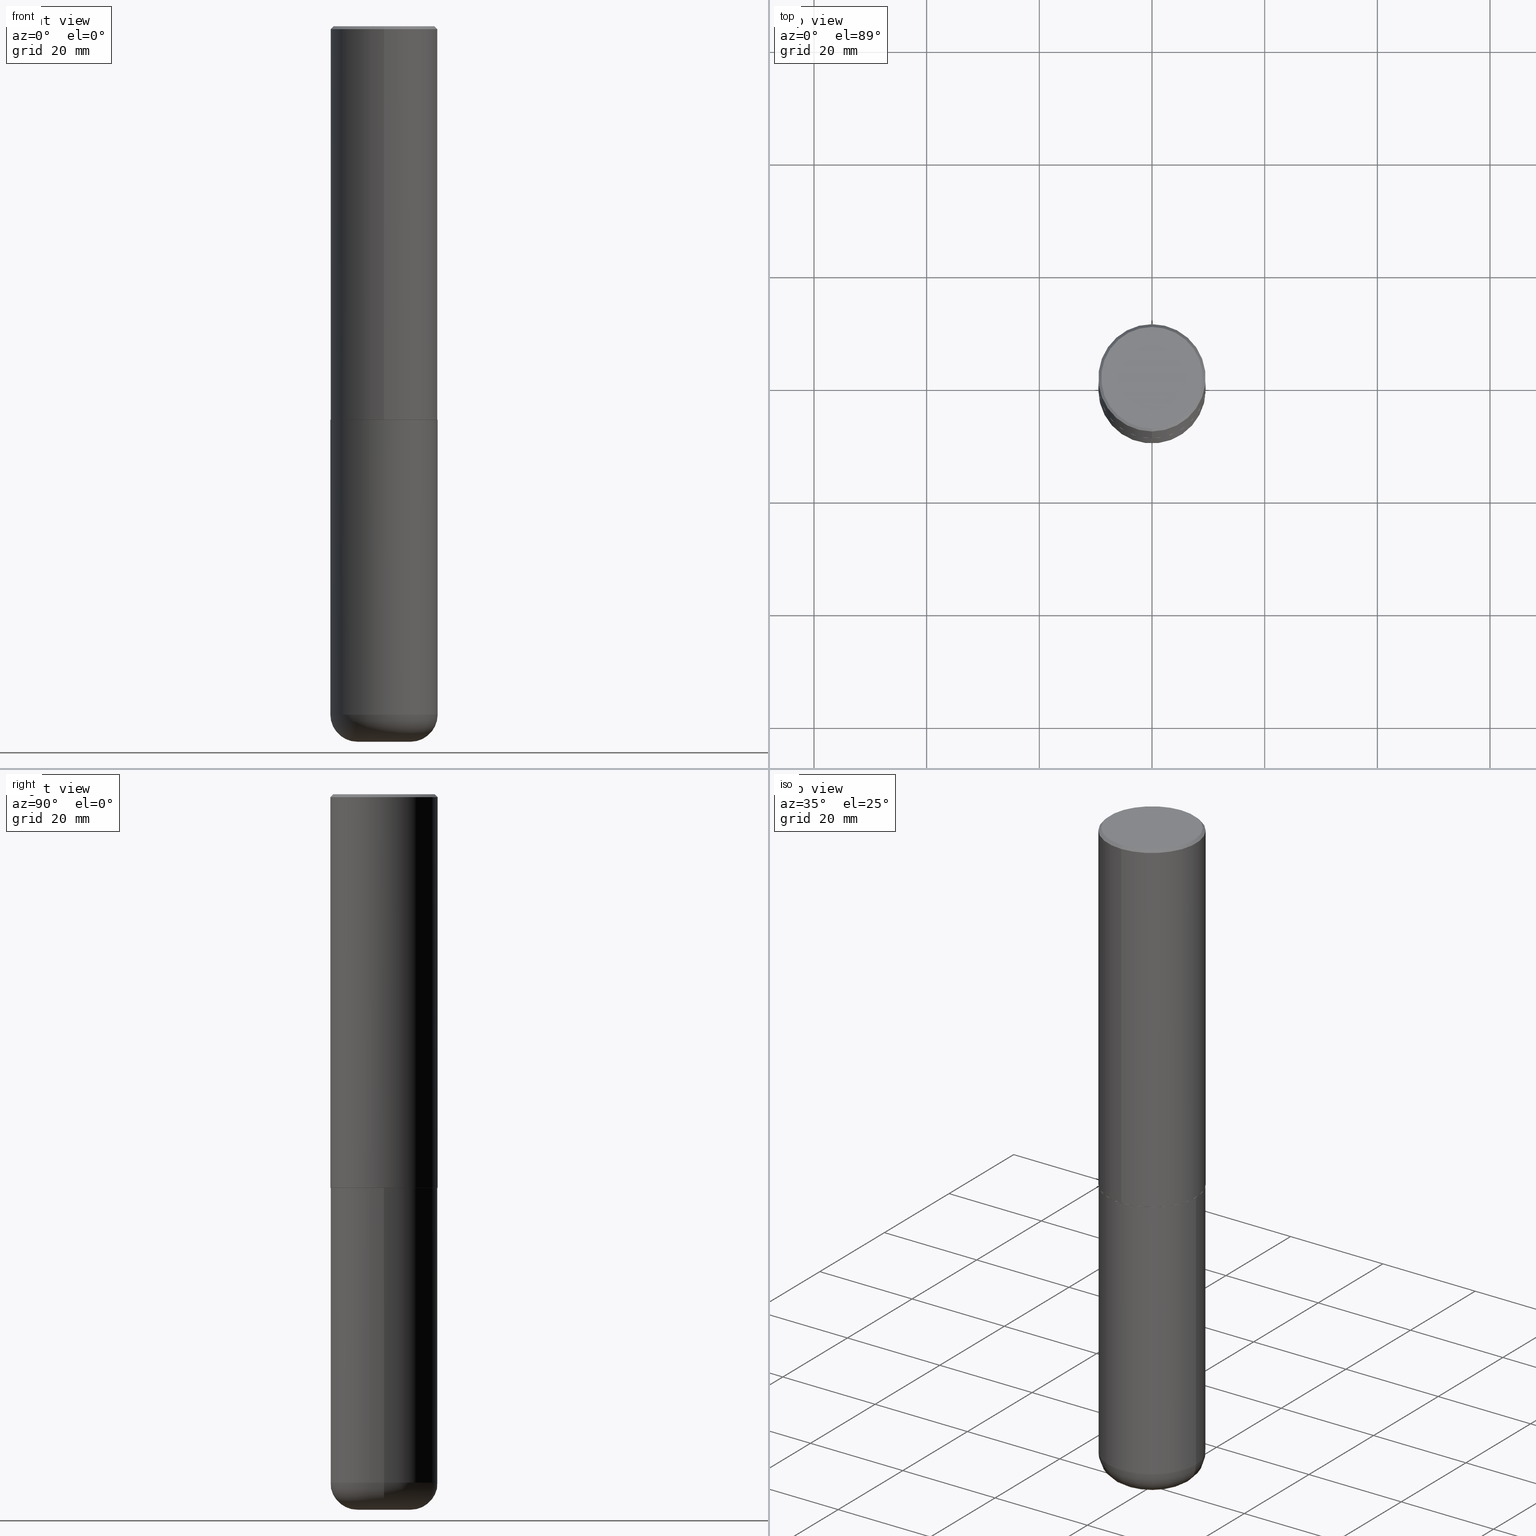
[diagram: canonical four-view strip — front | top / right | iso, engineering-drawing reading convention]
A machine part, canonical four-view strip (front | top / right | iso — engineering-drawing reading convention). The complete STEP part file that produces these views, byte-faithful:
ISO-10303-21;
HEADER;
FILE_DESCRIPTION (( 'STEP AP203' ),
    '1' );
FILE_NAME ('37680.STEP',
    '2024-03-02T08:03:44',
    ( '' ),
    ( '' ),
    'SwSTEP 2.0',
    'SolidWorks 2023',
    '' );
FILE_SCHEMA (( 'CONFIG_CONTROL_DESIGN' ));
ENDSEC;

DATA;
#1 = DIRECTION ( 'NONE',  ( 1.000000000000000000, -6.982962677686266711E-15, 0.000000000000000000 ) ) ;
#2 = COORDINATED_UNIVERSAL_TIME_OFFSET ( 5, 0, .BEHIND. ) ;
#3 = ORIENTED_EDGE ( 'NONE', *, *, #362, .T. ) ;
#4 = ORIENTED_EDGE ( 'NONE', *, *, #368, .T. ) ;
#5 = CIRCLE ( 'NONE', #166, 0.1899999999999999190 ) ;
#6 = CIRCLE ( 'NONE', #240, 0.1850000000000000810 ) ;
#7 = ORIENTED_EDGE ( 'NONE', *, *, #187, .T. ) ;
#8 = ADVANCED_BREP_SHAPE_REPRESENTATION ( '37680', ( #154, #290, #365 ), #36 ) ;
#9 = ADVANCED_FACE ( 'NONE', ( #194 ), #100, .T. ) ;
#10 = VERTEX_POINT ( 'NONE', #196 ) ;
#11 = DATE_AND_TIME ( #45, #392 ) ;
#12 = DIRECTION ( 'NONE',  ( -6.982962677686266711E-15, -1.000000000000000000, 3.491481338843145583E-15 ) ) ;
#13 = CARTESIAN_POINT ( 'NONE',  ( 1.176270495775050811E-28, -1.679402523983553013E-14, -4.810000000000000497 ) ) ;
#14 = ORIENTED_EDGE ( 'NONE', *, *, #227, .F. ) ;
#15 = AXIS2_PLACEMENT_3D ( 'NONE', #13, #232, #44 ) ;
#16 = DIRECTION ( 'NONE',  ( -2.446040391741596606E-29, 3.490662795793665557E-15, 1.000000000000000000 ) ) ;
#17 = SECURITY_CLASSIFICATION ( '', '', #28 ) ;
#18 = EDGE_CURVE ( 'NONE', #40, #276, #51, .T. ) ;
#19 = CARTESIAN_POINT ( 'NONE',  ( -0.3750000000000001110, 2.664535259100376486E-15, -1.844600658845590159E-29 ) ) ;
#20 = DIRECTION ( 'NONE',  ( 6.982962677686265922E-15, 1.000000000000000000, -3.490662795793665557E-15 ) ) ;
#21 = CARTESIAN_POINT ( 'NONE',  ( 2.618611004132350411E-15, 0.3749999999999999445, -0.02000000000000139513 ) ) ;
#22 = DIRECTION ( 'NONE',  ( -6.982962677686265922E-15, -1.000000000000000000, 3.490662795793665557E-15 ) ) ;
#23 = PRODUCT_DEFINITION ( 'UNKNOWN', '', #323, #313 ) ;
#24 = DIRECTION ( 'NONE',  ( -2.446040391741596606E-29, 3.490662795793665557E-15, 1.000000000000000000 ) ) ;
#25 = AXIS2_PLACEMENT_3D ( 'NONE', #210, #261, #216 ) ;
#26 =( NAMED_UNIT ( * ) SI_UNIT ( $, .STERADIAN. ) SOLID_ANGLE_UNIT ( ) );
#27 = DIRECTION ( 'NONE',  ( -2.446040391741596606E-29, 3.490662795793665557E-15, 1.000000000000000000 ) ) ;
#28 = SECURITY_CLASSIFICATION_LEVEL ( 'unclassified' ) ;
#29 = APPROVAL_ROLE ( '' ) ;
#30 = ADVANCED_FACE ( 'NONE', ( #56 ), #172, .F. ) ;
#31 = CIRCLE ( 'NONE', #81, 0.1850000000000000810 ) ;
#32 = ADVANCED_FACE ( 'NONE', ( #404 ), #199, .T. ) ;
#33 = AXIS2_PLACEMENT_3D ( 'NONE', #321, #121, #250 ) ;
#34 = CIRCLE ( 'NONE', #291, 0.3750000000000003886 ) ;
#35 = ORIENTED_EDGE ( 'NONE', *, *, #177, .T. ) ;
#36 =( GEOMETRIC_REPRESENTATION_CONTEXT ( 3 ) GLOBAL_UNCERTAINTY_ASSIGNED_CONTEXT ( ( #55 ) ) GLOBAL_UNIT_ASSIGNED_CONTEXT ( ( #102, #94, #26 ) ) REPRESENTATION_CONTEXT ( 'NONE', 'WORKASPACE' ) );
#37 = DATE_AND_TIME ( #349, #334 ) ;
#38 = ORIENTED_EDGE ( 'NONE', *, *, #41, .T. ) ;
#39 = VERTEX_POINT ( 'NONE', #263 ) ;
#40 = VERTEX_POINT ( 'NONE', #231 ) ;
#41 = EDGE_CURVE ( 'NONE', #195, #276, #267, .T. ) ;
#42 = AXIS2_PLACEMENT_3D ( 'NONE', #283, #119, #358 ) ;
#43 = DIRECTION ( 'NONE',  ( -2.445468806185136597E-29, 3.491481338843145583E-15, 1.000000000000000000 ) ) ;
#44 = DIRECTION ( 'NONE',  ( 1.000000000000000000, -6.982962677686269077E-15, 4.883557194083113462E-29 ) ) ;
#45 = CALENDAR_DATE ( 2024, 2, 3 ) ;
#46 = PERSON ( 'UNSPECIFIED', 'UNSPECIFIED', 'UNSPECIFIED', ('UNSPECIFIED'), ('UNSPECIFIED'), ('UNSPECIFIED') ) ;
#47 = CARTESIAN_POINT ( 'NONE',  ( 0.3750000000000000555, -1.941263624396788015E-14, -4.810000000000000497 ) ) ;
#48 = DIRECTION ( 'NONE',  ( -2.446040391741596606E-29, 3.490662795793665557E-15, 1.000000000000000000 ) ) ;
#49 = DIRECTION ( 'NONE',  ( 1.000000000000000000, -6.982962677686272233E-15, 0.000000000000000000 ) ) ;
#50 = CARTESIAN_POINT ( 'NONE',  ( 1.222734403092568523E-28, -1.745740669421572989E-14, -5.000000000000000000 ) ) ;
#51 = CIRCLE ( 'NONE', #96, 0.3750000000000000555 ) ;
#52 = VECTOR ( 'NONE', #273, 39.37007874015748143 ) ;
#53 = CARTESIAN_POINT ( 'NONE',  ( 4.892080783483214581E-31, -6.981325591587361238E-17, -0.02000000000000008715 ) ) ;
#54 = LOCAL_TIME ( 3, 3, 44.00000000000000000, #326 ) ;
#55 = UNCERTAINTY_MEASURE_WITH_UNIT (LENGTH_MEASURE( 1.000000000000000082E-05 ), #102, 'distance_accuracy_value', 'NONE');
#56 = FACE_OUTER_BOUND ( 'NONE', #260, .T. ) ;
#57 = EDGE_LOOP ( 'NONE', ( #3, #7, #228, #180 ) ) ;
#58 = LINE ( 'NONE', #179, #356 ) ;
#59 = PERSON_AND_ORGANIZATION ( #46, #278 ) ;
#60 = LINE ( 'NONE', #418, #391 ) ;
#61 = AXIS2_PLACEMENT_3D ( 'NONE', #374, #16, #236 ) ;
#62 = CALENDAR_DATE ( 2024, 2, 3 ) ;
#63 = CARTESIAN_POINT ( 'NONE',  ( -2.572686749164323547E-15, -0.3750000000000001110, -0.01999999999999877570 ) ) ;
#64 = EDGE_CURVE ( 'NONE', #378, #393, #31, .T. ) ;
#65 = CARTESIAN_POINT ( 'NONE',  ( 2.664535259100411196E-15, 0.3749999999999907296, -2.749000000000000998 ) ) ;
#66 = CC_DESIGN_PERSON_AND_ORGANIZATION_ASSIGNMENT ( #248, #413, ( #104 ) ) ;
#67 = DIRECTION ( 'NONE',  ( -6.982962677686265922E-15, -1.000000000000000000, 2.913971193241877611E-15 ) ) ;
#68 = PERSON_AND_ORGANIZATION ( #46, #278 ) ;
#69 = CARTESIAN_POINT ( 'NONE',  ( 6.725039217009124520E-29, -9.601573681818649859E-15, -2.750000000000000000 ) ) ;
#70 = AXIS2_PLACEMENT_3D ( 'NONE', #155, #253, #357 ) ;
#71 = ORIENTED_EDGE ( 'NONE', *, *, #126, .F. ) ;
#72 = ORIENTED_EDGE ( 'NONE', *, *, #329, .F. ) ;
#73 = VERTEX_POINT ( 'NONE', #107 ) ;
#74 = DIRECTION ( 'NONE',  ( -1.000000000000000000, 6.982962677686265922E-15, -4.876176775795935793E-29 ) ) ;
#75 = AXIS2_PLACEMENT_3D ( 'NONE', #411, #171, #268 ) ;
#76 = DIRECTION ( 'NONE',  ( -4.937700262165896205E-15, -0.7071067811867381980, 0.7071067811863568364 ) ) ;
#77 = CARTESIAN_POINT ( 'NONE',  ( 6.726611077289389265E-29, -9.599322688432580971E-15, -2.750000000000000000 ) ) ;
#78 = ADVANCED_FACE ( 'NONE', ( #176 ), #239, .T. ) ;
#79 = DIRECTION ( 'NONE',  ( -2.445468806185136597E-29, 3.491481338843145583E-15, 1.000000000000000000 ) ) ;
#80 = EDGE_LOOP ( 'NONE', ( #93, #35, #99, #173 ) ) ;
#81 = AXIS2_PLACEMENT_3D ( 'NONE', #338, #242, #49 ) ;
#82 = LOCAL_TIME ( 3, 3, 44.00000000000000000, #2 ) ;
#83 = CARTESIAN_POINT ( 'NONE',  ( 1.176270495775050811E-28, -1.679402523983553013E-14, -4.810000000000000497 ) ) ;
#84 = DIRECTION ( 'NONE',  ( -2.445468806185136597E-29, 3.491481338843145583E-15, 1.000000000000000000 ) ) ;
#85 = DIRECTION ( 'NONE',  ( -2.446040391741596606E-29, 3.490662795793665557E-15, 1.000000000000000000 ) ) ;
#86 = CALENDAR_DATE ( 2024, 2, 3 ) ;
#87 = PERSON_AND_ORGANIZATION_ROLE ( 'creator' ) ;
#88 = DIRECTION ( 'NONE',  ( 2.438088387897960049E-29, -3.491481338843145188E-15, -1.000000000000000000 ) ) ;
#89 = APPROVAL_STATUS ( 'not_yet_approved' ) ;
#90 = DIRECTION ( 'NONE',  ( -1.000000000000000000, 6.982962677686265922E-15, -4.876176775795935793E-29 ) ) ;
#91 = CIRCLE ( 'NONE', #149, 0.3750000000000001110 ) ;
#92 = LOCAL_TIME ( 3, 3, 44.00000000000000000, #360 ) ;
#93 = ORIENTED_EDGE ( 'NONE', *, *, #187, .F. ) ;
#94 =( NAMED_UNIT ( * ) PLANE_ANGLE_UNIT ( ) SI_UNIT ( $, .RADIAN. ) );
#95 = ORIENTED_EDGE ( 'NONE', *, *, #380, .F. ) ;
#96 = AXIS2_PLACEMENT_3D ( 'NONE', #69, #43, #1 ) ;
#97 = CC_DESIGN_PERSON_AND_ORGANIZATION_ASSIGNMENT ( #351, #87, ( #23 ) ) ;
#98 = EDGE_CURVE ( 'NONE', #393, #195, #5, .T. ) ;
#99 = ORIENTED_EDGE ( 'NONE', *, *, #152, .T. ) ;
#100 = PLANE ( 'NONE',  #224 ) ;
#101 = VERTEX_POINT ( 'NONE', #306 ) ;
#102 =( CONVERSION_BASED_UNIT ( 'INCH', #135 ) LENGTH_UNIT ( ) NAMED_UNIT ( #159 ) );
#103 = CIRCLE ( 'NONE', #298, 0.3750000000000001110 ) ;
#104 = PRODUCT ( '37680', '37680', '', ( #153 ) ) ;
#105 = DIRECTION ( 'NONE',  ( 1.000000000000000000, -6.982962677686264344E-15, 0.000000000000000000 ) ) ;
#106 = ORIENTED_EDGE ( 'NONE', *, *, #112, .T. ) ;
#107 = CARTESIAN_POINT ( 'NONE',  ( -0.3750000000000000555, -1.412948998073515443E-14, -4.810000000000000497 ) ) ;
#108 = EDGE_LOOP ( 'NONE', ( #130, #222 ) ) ;
#109 = DIRECTION ( 'NONE',  ( -4.851104656540954809E-15, -0.7071067811865486830, -0.7071067811865463515 ) ) ;
#110 = FACE_OUTER_BOUND ( 'NONE', #192, .T. ) ;
#111 = CLOSED_SHELL ( 'NONE', ( #32, #163, #280, #303, #344, #9 ) ) ;
#112 = EDGE_CURVE ( 'NONE', #295, #39, #225, .T. ) ;
#113 = DIRECTION ( 'NONE',  ( -2.446040391741596045E-29, 3.490662795793665557E-15, 1.000000000000000000 ) ) ;
#114 = ORIENTED_EDGE ( 'NONE', *, *, #329, .T. ) ;
#115 = EDGE_CURVE ( 'NONE', #10, #325, #309, .T. ) ;
#116 = DIRECTION ( 'NONE',  ( -2.445468806185136597E-29, 3.491481338843145583E-15, 1.000000000000000000 ) ) ;
#117 = APPLICATION_PROTOCOL_DEFINITION ( 'international standard', 'config_control_design', 1994, #122 ) ;
#118 = EDGE_CURVE ( 'NONE', #195, #73, #103, .T. ) ;
#119 = DIRECTION ( 'NONE',  ( 7.105427357601001859E-15, 1.000000000000000000, -3.491481338843145583E-15 ) ) ;
#120 = DATE_AND_TIME ( #62, #82 ) ;
#121 = DIRECTION ( 'NONE',  ( -2.445468806185136597E-29, 3.491481338843145583E-15, 1.000000000000000000 ) ) ;
#122 = APPLICATION_CONTEXT ( 'configuration controlled 3d designs of mechanical parts and assemblies' ) ;
#123 = APPROVAL_DATE_TIME ( #213, #289 ) ;
#124 = DIRECTION ( 'NONE',  ( -2.446040391741596606E-29, 3.490662795793665557E-15, 1.000000000000000000 ) ) ;
#125 = PLANE ( 'NONE',  #416 ) ;
#126 = EDGE_CURVE ( 'NONE', #73, #40, #207, .T. ) ;
#127 = AXIS2_PLACEMENT_3D ( 'NONE', #140, #376, #385 ) ;
#128 = EDGE_LOOP ( 'NONE', ( #71, #158, #38, #191 ) ) ;
#129 = APPLICATION_PROTOCOL_DEFINITION ( 'international standard', 'config_control_design', 1994, #181 ) ;
#130 = ORIENTED_EDGE ( 'NONE', *, *, #270, .T. ) ;
#131 = PRODUCT_RELATED_PRODUCT_CATEGORY ( 'detail', '', ( #104 ) ) ;
#132 = CARTESIAN_POINT ( 'NONE',  ( 1.176270495775050811E-28, -1.679402523983553013E-14, -4.810000000000000497 ) ) ;
#133 = CC_DESIGN_SECURITY_CLASSIFICATION ( #17, ( #323 ) ) ;
#134 = ORIENTED_EDGE ( 'NONE', *, *, #233, .F. ) ;
#135 = LENGTH_MEASURE_WITH_UNIT ( LENGTH_MEASURE( 0.02539999999999999897 ), #315 );
#136 = APPROVAL_DATE_TIME ( #11, #144 ) ;
#137 = DIRECTION ( 'NONE',  ( 2.446040391741596606E-29, -3.490662795793665557E-15, -1.000000000000000000 ) ) ;
#138 = DIRECTION ( 'NONE',  ( -6.982962677686265922E-15, -1.000000000000000000, 3.490662795793665557E-15 ) ) ;
#139 = CIRCLE ( 'NONE', #42, 0.1899999999999999190 ) ;
#140 = CARTESIAN_POINT ( 'NONE',  ( -1.141397163745304909E-45, 1.628849886601155835E-31, 4.666305460853910467E-17 ) ) ;
#141 = LINE ( 'NONE', #204, #161 ) ;
#142 = DIRECTION ( 'NONE',  ( -2.445468806185136877E-29, 3.491481338843145188E-15, 1.000000000000000000 ) ) ;
#143 = LINE ( 'NONE', #147, #182 ) ;
#144 = APPROVAL ( #256, 'UNSPECIFIED' ) ;
#145 = ORIENTED_EDGE ( 'NONE', *, *, #362, .F. ) ;
#146 = CARTESIAN_POINT ( 'NONE',  ( 0.1850000000000000533, -1.808587333520749010E-14, -4.810000000000000497 ) ) ;
#147 = CARTESIAN_POINT ( 'NONE',  ( -2.618611004132351594E-15, -0.3750000000000002220, 1.308998548422625521E-15 ) ) ;
#148 = ORIENTED_EDGE ( 'NONE', *, *, #41, .F. ) ;
#149 = AXIS2_PLACEMENT_3D ( 'NONE', #132, #84, #407 ) ;
#150 = CC_DESIGN_APPROVAL ( #289, ( #323 ) ) ;
#151 = DIRECTION ( 'NONE',  ( -2.445468806185136597E-29, 3.491481338843145583E-15, 1.000000000000000000 ) ) ;
#152 = EDGE_CURVE ( 'NONE', #361, #101, #406, .T. ) ;
#153 = MECHANICAL_CONTEXT ( 'NONE', #181, 'mechanical' ) ;
#154 = MANIFOLD_SOLID_BREP ( 'Body-Move/Copy2[1]', #111 ) ;
#155 = CARTESIAN_POINT ( 'NONE',  ( 6.725039217009124520E-29, -9.601573681818649859E-15, -2.750000000000000000 ) ) ;
#156 = VECTOR ( 'NONE', #142, 39.37007874015748143 ) ;
#157 = DIRECTION ( 'NONE',  ( 1.000000000000000000, 0.000000000000000000, 0.000000000000000000 ) ) ;
#158 = ORIENTED_EDGE ( 'NONE', *, *, #324, .T. ) ;
#159 = DIMENSIONAL_EXPONENTS ( 1.000000000000000000, 0.000000000000000000, 0.000000000000000000, 0.000000000000000000, 0.000000000000000000, 0.000000000000000000, 0.000000000000000000 ) ;
#160 = EDGE_LOOP ( 'NONE', ( #14, #405, #226, #394 ) ) ;
#161 = VECTOR ( 'NONE', #212, 39.37007874015748143 ) ;
#162 = CALENDAR_DATE ( 2024, 2, 3 ) ;
#163 = ADVANCED_FACE ( 'NONE', ( #110 ), #327, .T. ) ;
#164 = ORIENTED_EDGE ( 'NONE', *, *, #115, .F. ) ;
#165 = ORIENTED_EDGE ( 'NONE', *, *, #251, .T. ) ;
#166 = AXIS2_PLACEMENT_3D ( 'NONE', #146, #12, #105 ) ;
#167 = ADVANCED_FACE ( 'NONE', ( #381 ), #277, .T. ) ;
#168 = ORIENTED_EDGE ( 'NONE', *, *, #118, .F. ) ;
#169 = APPROVAL_PERSON_ORGANIZATION ( #294, #144, #300 ) ;
#170 = CYLINDRICAL_SURFACE ( 'NONE', #174, 0.3750000000000002220 ) ;
#171 = DIRECTION ( 'NONE',  ( -2.446040391741596606E-29, 3.490662795793665557E-15, 1.000000000000000000 ) ) ;
#172 = PLANE ( 'NONE',  #355 ) ;
#173 = ORIENTED_EDGE ( 'NONE', *, *, #287, .F. ) ;
#174 = AXIS2_PLACEMENT_3D ( 'NONE', #304, #27, #415 ) ;
#175 = APPROVAL_PERSON_ORGANIZATION ( #59, #296, #29 ) ;
#176 = FACE_OUTER_BOUND ( 'NONE', #400, .T. ) ;
#177 = EDGE_CURVE ( 'NONE', #257, #361, #350, .T. ) ;
#178 = CARTESIAN_POINT ( 'NONE',  ( -1.141397163745304909E-45, 1.628849886601155835E-31, 4.666305460853910467E-17 ) ) ;
#179 = CARTESIAN_POINT ( 'NONE',  ( 2.657429831742841742E-15, 0.3739999999999903957, -2.750000000000000888 ) ) ;
#180 = ORIENTED_EDGE ( 'NONE', *, *, #152, .F. ) ;
#181 = APPLICATION_CONTEXT ( 'configuration controlled 3d designs of mechanical parts and assemblies' ) ;
#182 = VECTOR ( 'NONE', #339, 39.37007874015748143 ) ;
#183 = PERSON_AND_ORGANIZATION ( #46, #278 ) ;
#184 = CARTESIAN_POINT ( 'NONE',  ( 4.892080783483214581E-31, -6.981325591587361238E-17, -0.02000000000000008715 ) ) ;
#185 = CARTESIAN_POINT ( 'NONE',  ( 0.000000000000000000, 0.000000000000000000, 0.000000000000000000 ) ) ;
#186 = DIRECTION ( 'NONE',  ( 2.446040391741596606E-29, -3.490662795793665557E-15, -1.000000000000000000 ) ) ;
#187 = EDGE_CURVE ( 'NONE', #257, #272, #58, .T. ) ;
#188 = ORIENTED_EDGE ( 'NONE', *, *, #368, .F. ) ;
#189 = CC_DESIGN_DATE_AND_TIME_ASSIGNMENT ( #284, #414, ( #17 ) ) ;
#190 = PERSON_AND_ORGANIZATION_ROLE ( 'classification_officer' ) ;
#191 = ORIENTED_EDGE ( 'NONE', *, *, #18, .F. ) ;
#192 = EDGE_LOOP ( 'NONE', ( #299, #398, #168, #408 ) ) ;
#193 = EDGE_LOOP ( 'NONE', ( #328, #333, #244, #148 ) ) ;
#194 = FACE_OUTER_BOUND ( 'NONE', #366, .T. ) ;
#195 = VERTEX_POINT ( 'NONE', #47 ) ;
#196 = CARTESIAN_POINT ( 'NONE',  ( -2.504081769186608216E-15, -0.3549999999999999822, 1.285848347115290366E-15 ) ) ;
#197 = CONICAL_SURFACE ( 'NONE', #341, 0.3750000000000000555, 0.7853981633974465026 ) ;
#198 = CARTESIAN_POINT ( 'NONE',  ( 6.726611077289389265E-29, -9.599322688432580971E-15, -2.750000000000000000 ) ) ;
#199 = CYLINDRICAL_SURFACE ( 'NONE', #396, 0.3750000000000001110 ) ;
#200 = CARTESIAN_POINT ( 'NONE',  ( -0.1850000000000000810, -1.513619630689734772E-14, -5.000000000000000000 ) ) ;
#201 = PRODUCT_DEFINITION_SHAPE ( 'NONE', 'NONE',  #23 ) ;
#202 = EDGE_CURVE ( 'NONE', #101, #272, #364, .T. ) ;
#203 = CARTESIAN_POINT ( 'NONE',  ( 0.000000000000000000, 0.000000000000000000, 0.000000000000000000 ) ) ;
#204 = CARTESIAN_POINT ( 'NONE',  ( 2.664535259100376880E-15, 0.3750000000000002220, -1.308998548422625521E-15 ) ) ;
#205 = AXIS2_PLACEMENT_3D ( 'NONE', #198, #85, #347 ) ;
#206 = CC_DESIGN_APPROVAL ( #144, ( #17 ) ) ;
#207 = LINE ( 'NONE', #19, #397 ) ;
#208 = DIRECTION ( 'NONE',  ( -2.446040391741596606E-29, 3.490662795793665557E-15, 1.000000000000000000 ) ) ;
#209 = EDGE_LOOP ( 'NONE', ( #255, #114, #352, #308 ) ) ;
#210 = CARTESIAN_POINT ( 'NONE',  ( 0.000000000000000000, 0.000000000000000000, 0.000000000000000000 ) ) ;
#211 = CARTESIAN_POINT ( 'NONE',  ( 1.176270495775050811E-28, -1.679402523983553013E-14, -4.810000000000000497 ) ) ;
#212 = DIRECTION ( 'NONE',  ( -2.446040391741596606E-29, 3.490662795793665557E-15, 1.000000000000000000 ) ) ;
#213 = DATE_AND_TIME ( #86, #92 ) ;
#214 = AXIS2_PLACEMENT_3D ( 'NONE', #375, #372, #20 ) ;
#215 = FACE_OUTER_BOUND ( 'NONE', #128, .T. ) ;
#216 = DIRECTION ( 'NONE',  ( -6.982962677686266711E-15, -1.000000000000000000, 3.490662795793665951E-15 ) ) ;
#217 = PERSON_AND_ORGANIZATION_ROLE ( 'creator' ) ;
#218 = CC_DESIGN_PERSON_AND_ORGANIZATION_ASSIGNMENT ( #353, #319, ( #323 ) ) ;
#219 = AXIS2_PLACEMENT_3D ( 'NONE', #316, #24, #281 ) ;
#220 = CARTESIAN_POINT ( 'NONE',  ( 6.725039217009124520E-29, -9.601573681818649859E-15, -2.750000000000000000 ) ) ;
#221 = CC_DESIGN_PERSON_AND_ORGANIZATION_ASSIGNMENT ( #183, #217, ( #323 ) ) ;
#222 = ORIENTED_EDGE ( 'NONE', *, *, #18, .T. ) ;
#223 = ADVANCED_FACE ( 'NONE', ( #412 ), #170, .T. ) ;
#224 = AXIS2_PLACEMENT_3D ( 'NONE', #301, #369, #74 ) ;
#225 = CIRCLE ( 'NONE', #61, 0.3750000000000000555 ) ;
#226 = ORIENTED_EDGE ( 'NONE', *, *, #98, .T. ) ;
#227 = EDGE_CURVE ( 'NONE', #378, #73, #139, .T. ) ;
#228 = ORIENTED_EDGE ( 'NONE', *, *, #202, .F. ) ;
#229 = EDGE_LOOP ( 'NONE', ( #72, #293, #371, #95 ) ) ;
#230 = CIRCLE ( 'NONE', #382, 0.3750000000000000555 ) ;
#231 = CARTESIAN_POINT ( 'NONE',  ( -0.3750000000000000555, -1.053326420172671351E-14, -2.750000000000000000 ) ) ;
#232 = DIRECTION ( 'NONE',  ( -2.445468806185136597E-29, 3.491481338843145583E-15, 1.000000000000000000 ) ) ;
#233 = EDGE_CURVE ( 'NONE', #10, #295, #60, .T. ) ;
#234 = DIRECTION ( 'NONE',  ( 6.982962677686265922E-15, 1.000000000000000000, -3.494488891895536035E-15 ) ) ;
#235 = FACE_OUTER_BOUND ( 'NONE', #265, .T. ) ;
#236 = DIRECTION ( 'NONE',  ( -6.982962677686265922E-15, -1.000000000000000000, 3.494488891895536035E-15 ) ) ;
#237 = DIRECTION ( 'NONE',  ( -6.982962677686265922E-15, -1.000000000000000000, 3.494488891895536035E-15 ) ) ;
#238 = ORIENTED_EDGE ( 'NONE', *, *, #233, .T. ) ;
#239 = CONICAL_SURFACE ( 'NONE', #297, 0.3750000000000000555, 0.7853981633974465026 ) ;
#240 = AXIS2_PLACEMENT_3D ( 'NONE', #50, #275, #243 ) ;
#241 = FACE_OUTER_BOUND ( 'NONE', #209, .T. ) ;
#242 = DIRECTION ( 'NONE',  ( -2.445468806185136597E-29, 3.491481338843145583E-15, 1.000000000000000000 ) ) ;
#243 = DIRECTION ( 'NONE',  ( 1.000000000000000000, -6.982962677686272233E-15, 0.000000000000000000 ) ) ;
#244 = ORIENTED_EDGE ( 'NONE', *, *, #270, .F. ) ;
#245 = DIRECTION ( 'NONE',  ( 1.000000000000000000, -6.982962677686265922E-15, 4.876176775795935793E-29 ) ) ;
#246 = COORDINATED_UNIVERSAL_TIME_OFFSET ( 5, 0, .BEHIND. ) ;
#247 = CIRCLE ( 'NONE', #70, 0.3750000000000000555 ) ;
#248 = PERSON_AND_ORGANIZATION ( #46, #278 ) ;
#249 = CC_DESIGN_DATE_AND_TIME_ASSIGNMENT ( #120, #389, ( #23 ) ) ;
#250 = DIRECTION ( 'NONE',  ( 1.000000000000000000, -6.982962677686265922E-15, 4.876176775795935793E-29 ) ) ;
#251 = EDGE_CURVE ( 'NONE', #325, #39, #312, .T. ) ;
#252 = CYLINDRICAL_SURFACE ( 'NONE', #33, 0.3750000000000001110 ) ;
#253 = DIRECTION ( 'NONE',  ( -2.445468806185136597E-29, 3.491481338843145583E-15, 1.000000000000000000 ) ) ;
#254 = CONICAL_SURFACE ( 'NONE', #75, 0.3739999999999999991, 0.7853981633977213939 ) ;
#255 = ORIENTED_EDGE ( 'NONE', *, *, #202, .T. ) ;
#256 = APPROVAL_STATUS ( 'not_yet_approved' ) ;
#257 = VERTEX_POINT ( 'NONE', #409 ) ;
#258 = TOROIDAL_SURFACE ( 'NONE', #15, 0.1850000000000000533, 0.1899999999999999467 ) ;
#259 = ADVANCED_FACE ( 'NONE', ( #241 ), #384, .T. ) ;
#260 = EDGE_LOOP ( 'NONE', ( #145, #348 ) ) ;
#261 = DIRECTION ( 'NONE',  ( -2.446040391741596606E-29, 3.490662795793665557E-15, 1.000000000000000000 ) ) ;
#262 = CARTESIAN_POINT ( 'NONE',  ( 4.892080783483214581E-31, -6.981325591587361238E-17, -0.02000000000000008715 ) ) ;
#263 = CARTESIAN_POINT ( 'NONE',  ( 2.618611004132350411E-15, 0.3749999999999999445, -0.02000000000000139513 ) ) ;
#264 = CLOSED_SHELL ( 'NONE', ( #359, #259, #285, #78, #223, #167, #30, #373 ) ) ;
#265 = EDGE_LOOP ( 'NONE', ( #4, #269 ) ) ;
#266 = AXIS2_PLACEMENT_3D ( 'NONE', #83, #151, #314 ) ;
#267 = LINE ( 'NONE', #310, #156 ) ;
#268 = DIRECTION ( 'NONE',  ( -6.982962677686266711E-15, -1.000000000000000000, 2.921762560068730595E-15 ) ) ;
#269 = ORIENTED_EDGE ( 'NONE', *, *, #115, .T. ) ;
#270 = EDGE_CURVE ( 'NONE', #276, #40, #247, .T. ) ;
#271 = DIRECTION ( 'NONE',  ( -2.445468806185136877E-29, 3.491481338843145188E-15, 1.000000000000000000 ) ) ;
#272 = VERTEX_POINT ( 'NONE', #65 ) ;
#273 = DIRECTION ( 'NONE',  ( 4.937700262164538576E-15, 0.7071067811865437980, -0.7071067811865512365 ) ) ;
#274 = DIRECTION ( 'NONE',  ( -6.982962677686266711E-15, -1.000000000000000000, 2.921762560068730595E-15 ) ) ;
#275 = DIRECTION ( 'NONE',  ( -2.445468806185136597E-29, 3.491481338843145583E-15, 1.000000000000000000 ) ) ;
#276 = VERTEX_POINT ( 'NONE', #279 ) ;
#277 = CONICAL_SURFACE ( 'NONE', #332, 0.3739999999999999991, 0.7853981633977213939 ) ;
#278 = ORGANIZATION ( 'UNSPECIFIED', 'UNSPECIFIED', '' ) ;
#279 = CARTESIAN_POINT ( 'NONE',  ( 0.3750000000000000555, -1.222018468595100145E-14, -2.750000000000000000 ) ) ;
#280 = ADVANCED_FACE ( 'NONE', ( #386 ), #125, .F. ) ;
#281 = DIRECTION ( 'NONE',  ( -6.982962677686265922E-15, -1.000000000000000000, 2.913971193241877611E-15 ) ) ;
#282 = DIRECTION ( 'NONE',  ( 6.982962677686265922E-15, 1.000000000000000000, -3.494488891895536035E-15 ) ) ;
#283 = CARTESIAN_POINT ( 'NONE',  ( -0.1850000000000000533, -1.547952117867934441E-14, -4.810000000000000497 ) ) ;
#284 = DATE_AND_TIME ( #162, #54 ) ;
#285 = ADVANCED_FACE ( 'NONE', ( #354 ), #197, .T. ) ;
#286 = DIRECTION ( 'NONE',  ( 0.000000000000000000, 0.000000000000000000, 1.000000000000000000 ) ) ;
#287 = EDGE_CURVE ( 'NONE', #272, #101, #34, .T. ) ;
#288 = APPROVAL_STATUS ( 'not_yet_approved' ) ;
#289 = APPROVAL ( #89, 'UNSPECIFIED' ) ;
#290 = MANIFOLD_SOLID_BREP ( 'Body-Move/Copy2[2]', #264 ) ;
#291 = AXIS2_PLACEMENT_3D ( 'NONE', #320, #124, #67 ) ;
#292 = APPROVAL_PERSON_ORGANIZATION ( #387, #289, #417 ) ;
#293 = ORIENTED_EDGE ( 'NONE', *, *, #287, .T. ) ;
#294 = PERSON_AND_ORGANIZATION ( #46, #278 ) ;
#295 = VERTEX_POINT ( 'NONE', #63 ) ;
#296 = APPROVAL ( #288, 'UNSPECIFIED' ) ;
#297 = AXIS2_PLACEMENT_3D ( 'NONE', #53, #137, #234 ) ;
#298 = AXIS2_PLACEMENT_3D ( 'NONE', #211, #79, #340 ) ;
#299 = ORIENTED_EDGE ( 'NONE', *, *, #390, .T. ) ;
#300 = APPROVAL_ROLE ( '' ) ;
#301 = CARTESIAN_POINT ( 'NONE',  ( 1.222734403092568523E-28, -1.745740669421572989E-14, -5.000000000000000000 ) ) ;
#302 = CARTESIAN_POINT ( 'NONE',  ( 6.726611077289389265E-29, -9.599322688432580971E-15, -2.750000000000000000 ) ) ;
#303 = ADVANCED_FACE ( 'NONE', ( #215 ), #252, .T. ) ;
#304 = CARTESIAN_POINT ( 'NONE',  ( 0.000000000000000000, 0.000000000000000000, 0.000000000000000000 ) ) ;
#305 = DIRECTION ( 'NONE',  ( -2.446040391741596606E-29, 3.490662795793665557E-15, 1.000000000000000000 ) ) ;
#306 = CARTESIAN_POINT ( 'NONE',  ( -2.618611004132284935E-15, -0.3750000000000099920, -2.748999999999999222 ) ) ;
#307 = FACE_OUTER_BOUND ( 'NONE', #57, .T. ) ;
#308 = ORIENTED_EDGE ( 'NONE', *, *, #379, .F. ) ;
#309 = CIRCLE ( 'NONE', #127, 0.3549999999999999822 ) ;
#310 = CARTESIAN_POINT ( 'NONE',  ( 0.3750000000000001110, -2.618611004132350411E-15, 1.828566290923476483E-29 ) ) ;
#311 = CARTESIAN_POINT ( 'NONE',  ( 2.548781377355487113E-15, 0.3549999999999999822, -1.192522237898212341E-15 ) ) ;
#312 = LINE ( 'NONE', #21, #52 ) ;
#313 = DESIGN_CONTEXT ( 'detailed design', #122, 'design' ) ;
#314 = DIRECTION ( 'NONE',  ( 1.000000000000000000, -6.982962677686269077E-15, 4.883557194083113462E-29 ) ) ;
#315 =( LENGTH_UNIT ( ) NAMED_UNIT ( * ) SI_UNIT ( $, .METRE. ) );
#316 = CARTESIAN_POINT ( 'NONE',  ( 6.724165036897648492E-29, -9.595832025636787455E-15, -2.749000000000000110 ) ) ;
#317 = APPROVAL_DATE_TIME ( #37, #296 ) ;
#318 = AXIS2_PLACEMENT_3D ( 'NONE', #302, #48, #345 ) ;
#319 = PERSON_AND_ORGANIZATION_ROLE ( 'design_supplier' ) ;
#320 = CARTESIAN_POINT ( 'NONE',  ( 6.724165036897648492E-29, -9.595832025636787455E-15, -2.749000000000000110 ) ) ;
#321 = CARTESIAN_POINT ( 'NONE',  ( 0.000000000000000000, 0.000000000000000000, 0.000000000000000000 ) ) ;
#322 = CIRCLE ( 'NONE', #318, 0.3739999999999999991 ) ;
#323 = PRODUCT_DEFINITION_FORMATION_WITH_SPECIFIED_SOURCE ( 'ANY', '', #104, .NOT_KNOWN. ) ;
#324 = EDGE_CURVE ( 'NONE', #73, #195, #91, .T. ) ;
#325 = VERTEX_POINT ( 'NONE', #311 ) ;
#326 = COORDINATED_UNIVERSAL_TIME_OFFSET ( 5, 0, .BEHIND. ) ;
#327 = TOROIDAL_SURFACE ( 'NONE', #266, 0.1850000000000000533, 0.1899999999999999467 ) ;
#328 = ORIENTED_EDGE ( 'NONE', *, *, #118, .T. ) ;
#329 = EDGE_CURVE ( 'NONE', #272, #39, #141, .T. ) ;
#330 = ORIENTED_EDGE ( 'NONE', *, *, #64, .F. ) ;
#331 = EDGE_LOOP ( 'NONE', ( #164, #238, #106, #395 ) ) ;
#332 = AXIS2_PLACEMENT_3D ( 'NONE', #343, #410, #274 ) ;
#333 = ORIENTED_EDGE ( 'NONE', *, *, #126, .T. ) ;
#334 = LOCAL_TIME ( 3, 3, 44.00000000000000000, #246 ) ;
#335 = COORDINATED_UNIVERSAL_TIME_OFFSET ( 5, 0, .BEHIND. ) ;
#336 = DIRECTION ( 'NONE',  ( 5.024295867789434219E-15, 0.7071067811867430830, 0.7071067811863519514 ) ) ;
#337 = FACE_OUTER_BOUND ( 'NONE', #160, .T. ) ;
#338 = CARTESIAN_POINT ( 'NONE',  ( 1.222734403092568523E-28, -1.745740669421572989E-14, -5.000000000000000000 ) ) ;
#339 = DIRECTION ( 'NONE',  ( -2.446040391741596606E-29, 3.490662795793665557E-15, 1.000000000000000000 ) ) ;
#340 = DIRECTION ( 'NONE',  ( 1.000000000000000000, -6.982962677686265922E-15, 0.000000000000000000 ) ) ;
#341 = AXIS2_PLACEMENT_3D ( 'NONE', #184, #186, #282 ) ;
#342 = CC_DESIGN_APPROVAL ( #296, ( #23 ) ) ;
#343 = CARTESIAN_POINT ( 'NONE',  ( 6.726611077289389265E-29, -9.599322688432580971E-15, -2.750000000000000000 ) ) ;
#344 = ADVANCED_FACE ( 'NONE', ( #337 ), #258, .T. ) ;
#345 = DIRECTION ( 'NONE',  ( -6.982962677686266711E-15, -1.000000000000000000, 2.921762560068730595E-15 ) ) ;
#346 = ORIENTED_EDGE ( 'NONE', *, *, #380, .T. ) ;
#347 = DIRECTION ( 'NONE',  ( -6.982962677686266711E-15, -1.000000000000000000, 2.921762560068730595E-15 ) ) ;
#348 = ORIENTED_EDGE ( 'NONE', *, *, #177, .F. ) ;
#349 = CALENDAR_DATE ( 2024, 2, 3 ) ;
#350 = CIRCLE ( 'NONE', #205, 0.3739999999999999991 ) ;
#351 = PERSON_AND_ORGANIZATION ( #46, #278 ) ;
#352 = ORIENTED_EDGE ( 'NONE', *, *, #112, .F. ) ;
#353 = PERSON_AND_ORGANIZATION ( #46, #278 ) ;
#354 = FACE_OUTER_BOUND ( 'NONE', #331, .T. ) ;
#355 = AXIS2_PLACEMENT_3D ( 'NONE', #77, #113, #22 ) ;
#356 = VECTOR ( 'NONE', #336, 39.37007874015748143 ) ;
#357 = DIRECTION ( 'NONE',  ( 1.000000000000000000, -6.982962677686266711E-15, 0.000000000000000000 ) ) ;
#358 = DIRECTION ( 'NONE',  ( -1.000000000000000000, 7.105427357601001070E-15, 0.000000000000000000 ) ) ;
#359 = ADVANCED_FACE ( 'NONE', ( #307 ), #254, .T. ) ;
#360 = COORDINATED_UNIVERSAL_TIME_OFFSET ( 5, 0, .BEHIND. ) ;
#361 = VERTEX_POINT ( 'NONE', #401 ) ;
#362 = EDGE_CURVE ( 'NONE', #361, #257, #322, .T. ) ;
#363 = SHAPE_DEFINITION_REPRESENTATION ( #201, #8 ) ;
#364 = CIRCLE ( 'NONE', #219, 0.3750000000000003886 ) ;
#365 = AXIS2_PLACEMENT_3D ( 'NONE', #185, #286, #157 ) ;
#366 = EDGE_LOOP ( 'NONE', ( #367, #330 ) ) ;
#367 = ORIENTED_EDGE ( 'NONE', *, *, #390, .F. ) ;
#368 = EDGE_CURVE ( 'NONE', #325, #10, #370, .T. ) ;
#369 = DIRECTION ( 'NONE',  ( 2.438088387897960049E-29, -3.491481338843145188E-15, -1.000000000000000000 ) ) ;
#370 = CIRCLE ( 'NONE', #388, 0.3549999999999999822 ) ;
#371 = ORIENTED_EDGE ( 'NONE', *, *, #379, .T. ) ;
#372 = DIRECTION ( 'NONE',  ( 2.446040391741596045E-29, -3.490662795793665557E-15, -1.000000000000000000 ) ) ;
#373 = ADVANCED_FACE ( 'NONE', ( #235 ), #377, .F. ) ;
#374 = CARTESIAN_POINT ( 'NONE',  ( 4.892080783483214581E-31, -6.981325591587361238E-17, -0.02000000000000008715 ) ) ;
#375 = CARTESIAN_POINT ( 'NONE',  ( 2.478951750578624209E-15, 0.3549999999999999822, -1.215853765202481601E-15 ) ) ;
#376 = DIRECTION ( 'NONE',  ( -2.446040391741596606E-29, 3.490662795793665557E-15, 1.000000000000000000 ) ) ;
#377 = PLANE ( 'NONE',  #214 ) ;
#378 = VERTEX_POINT ( 'NONE', #200 ) ;
#379 = EDGE_CURVE ( 'NONE', #101, #295, #143, .T. ) ;
#380 = EDGE_CURVE ( 'NONE', #39, #295, #230, .T. ) ;
#381 = FACE_OUTER_BOUND ( 'NONE', #80, .T. ) ;
#382 = AXIS2_PLACEMENT_3D ( 'NONE', #262, #208, #237 ) ;
#383 = CARTESIAN_POINT ( 'NONE',  ( 0.1850000000000000810, -1.874925478958768986E-14, -5.000000000000000000 ) ) ;
#384 = CYLINDRICAL_SURFACE ( 'NONE', #25, 0.3750000000000002220 ) ;
#385 = DIRECTION ( 'NONE',  ( -6.982962677686265922E-15, -1.000000000000000000, 3.490662795793665557E-15 ) ) ;
#386 = FACE_OUTER_BOUND ( 'NONE', #108, .T. ) ;
#387 = PERSON_AND_ORGANIZATION ( #46, #278 ) ;
#388 = AXIS2_PLACEMENT_3D ( 'NONE', #178, #305, #138 ) ;
#389 = DATE_TIME_ROLE ( 'creation_date' ) ;
#390 = EDGE_CURVE ( 'NONE', #393, #378, #6, .T. ) ;
#391 = VECTOR ( 'NONE', #109, 39.37007874015748143 ) ;
#392 = LOCAL_TIME ( 3, 3, 44.00000000000000000, #335 ) ;
#393 = VERTEX_POINT ( 'NONE', #383 ) ;
#394 = ORIENTED_EDGE ( 'NONE', *, *, #324, .F. ) ;
#395 = ORIENTED_EDGE ( 'NONE', *, *, #251, .F. ) ;
#396 = AXIS2_PLACEMENT_3D ( 'NONE', #203, #116, #245 ) ;
#397 = VECTOR ( 'NONE', #271, 39.37007874015748143 ) ;
#398 = ORIENTED_EDGE ( 'NONE', *, *, #227, .T. ) ;
#399 = CC_DESIGN_PERSON_AND_ORGANIZATION_ASSIGNMENT ( #68, #190, ( #17 ) ) ;
#400 = EDGE_LOOP ( 'NONE', ( #134, #188, #165, #346 ) ) ;
#401 = CARTESIAN_POINT ( 'NONE',  ( -2.611628041454596160E-15, -0.3740000000000096581, -2.749999999999998668 ) ) ;
#402 = VECTOR ( 'NONE', #76, 39.37007874015748143 ) ;
#403 = CARTESIAN_POINT ( 'NONE',  ( -2.611628041454596160E-15, -0.3740000000000096581, -2.749999999999998668 ) ) ;
#404 = FACE_OUTER_BOUND ( 'NONE', #193, .T. ) ;
#405 = ORIENTED_EDGE ( 'NONE', *, *, #64, .T. ) ;
#406 = LINE ( 'NONE', #403, #402 ) ;
#407 = DIRECTION ( 'NONE',  ( 1.000000000000000000, -6.982962677686265922E-15, 0.000000000000000000 ) ) ;
#408 = ORIENTED_EDGE ( 'NONE', *, *, #98, .F. ) ;
#409 = CARTESIAN_POINT ( 'NONE',  ( 2.660982545421643429E-15, 0.3739999999999903957, -2.750000000000000888 ) ) ;
#410 = DIRECTION ( 'NONE',  ( -2.446040391741596606E-29, 3.490662795793665557E-15, 1.000000000000000000 ) ) ;
#411 = CARTESIAN_POINT ( 'NONE',  ( 6.726611077289389265E-29, -9.599322688432580971E-15, -2.750000000000000000 ) ) ;
#412 = FACE_OUTER_BOUND ( 'NONE', #229, .T. ) ;
#413 = PERSON_AND_ORGANIZATION_ROLE ( 'design_owner' ) ;
#414 = DATE_TIME_ROLE ( 'classification_date' ) ;
#415 = DIRECTION ( 'NONE',  ( -6.982962677686266711E-15, -1.000000000000000000, 3.490662795793665951E-15 ) ) ;
#416 = AXIS2_PLACEMENT_3D ( 'NONE', #220, #88, #90 ) ;
#417 = APPROVAL_ROLE ( '' ) ;
#418 = CARTESIAN_POINT ( 'NONE',  ( -2.572686749164323547E-15, -0.3750000000000001110, -0.01999999999999877570 ) ) ;
ENDSEC;
END-ISO-10303-21;
